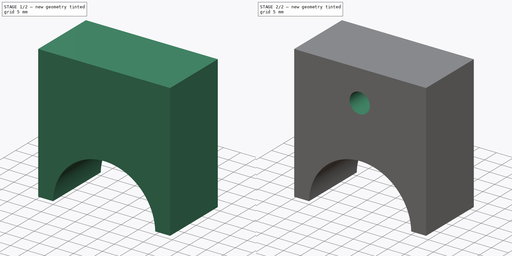
[diagram: build sequence overview — one tinted view per stage of 2, left to right]
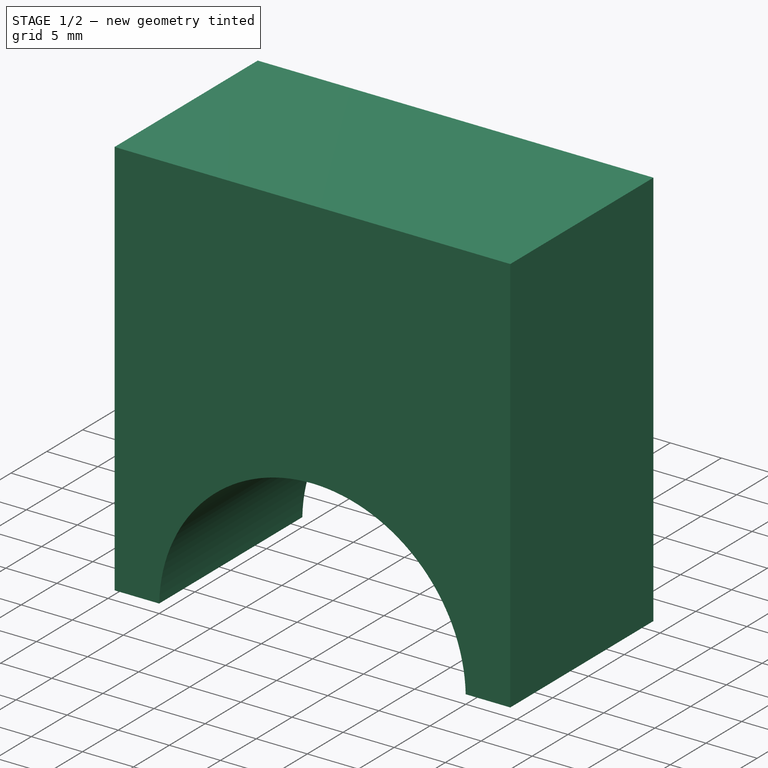
[diagram: stage 1 of 2 — iso view after this stage's code; geometry added in this stage tinted green]
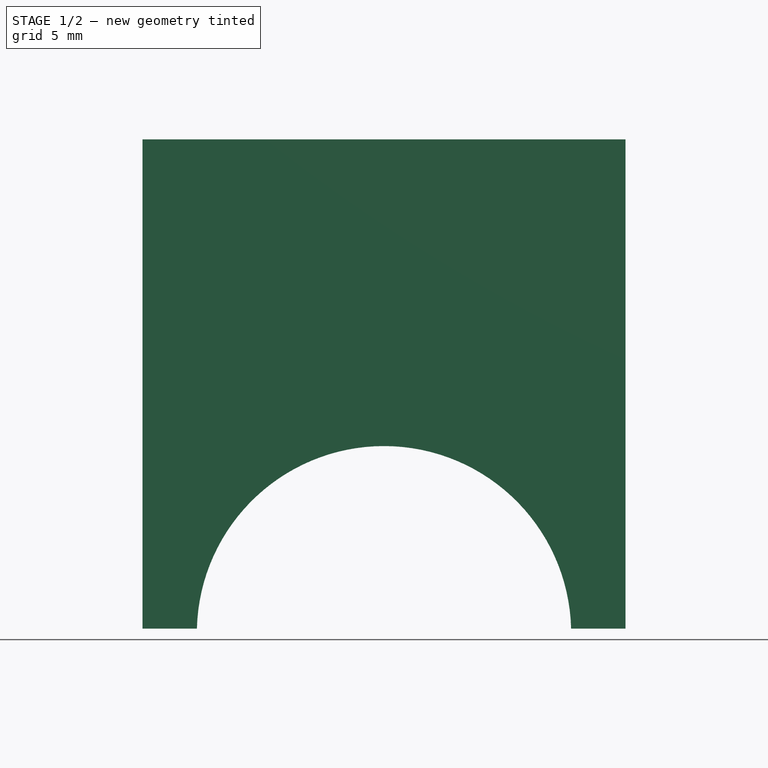
[diagram: stage 1 of 2 — front view after this stage's code; geometry added in this stage tinted green]
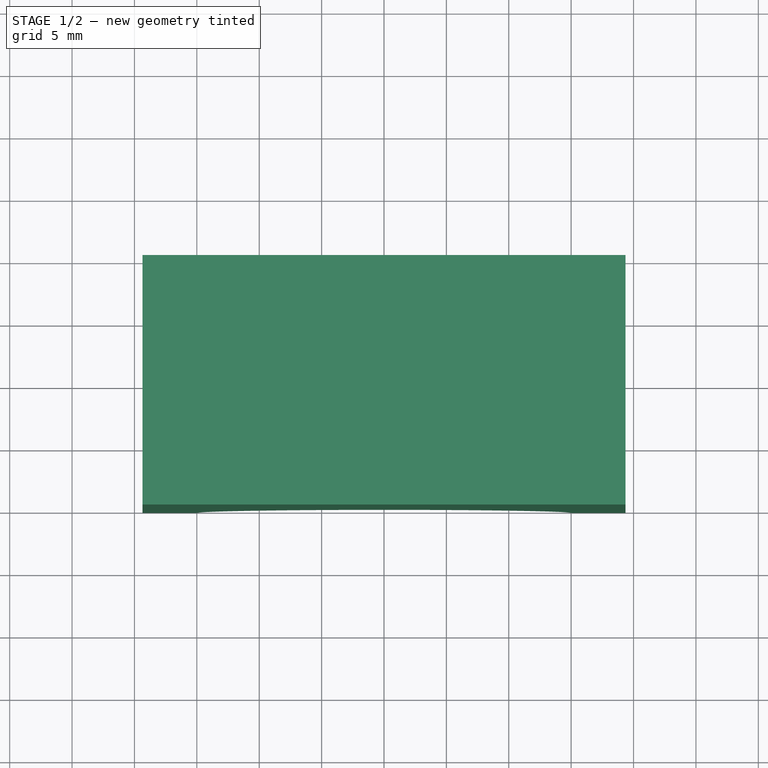
[diagram: stage 1 of 2 — top view after this stage's code; geometry added in this stage tinted green]
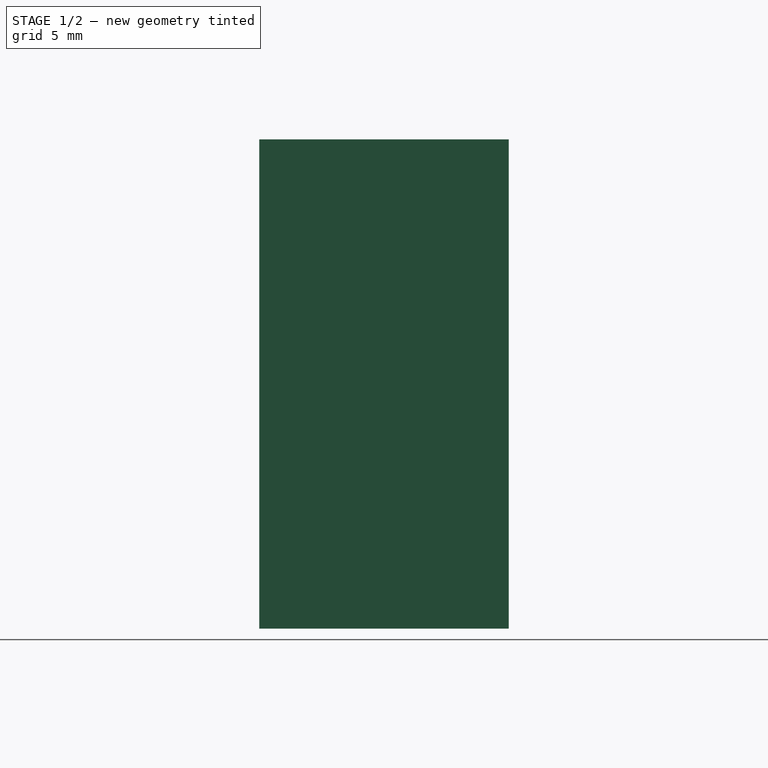
[diagram: stage 1 of 2 — right view after this stage's code; geometry added in this stage tinted green]
FCSTD DOCUMENT  (FreeCAD 0.16R6705 (Git))
Label: boccola
License: All rights reserved
LicenseURL: http://it.wikipedia.org/wiki/<copyright redacted>
objects: Sketcher::SketchObject×2, PartDesign::Pad×1, PartDesign::Pocket×1
note: 6 computed .brp shape members not serialized (recipe doc carries the construction recipe); baked Part::Feature solids carry a one-line shape summary decoded from their .brp

FEATURE [Sketcher::SketchObject] Sketch
  Placement = pos=(0,0,0) rot=(-1,0,0;4.71239rad)
  sketch-geometry (6):
    g0: ArcOfCircle CenterX=0 CenterY=-0.369393 CenterZ=0 NormalX=0 NormalY=0 NormalZ=1 Radius=15 StartAngle=0.0246288 EndAngle=3.11696
    g1: LineSegment StartX=-14.9955 StartY=1e-06 StartZ=0 EndX=-19.3579 EndY=1e-06 EndZ=0
    g2: LineSegment StartX=-19.3579 StartY=1e-06 StartZ=0 EndX=-19.3579 EndY=39.2091 EndZ=0
    g3: LineSegment StartX=-19.3579 StartY=39.2091 StartZ=0 EndX=19.3579 EndY=39.2091 EndZ=0
    g4: LineSegment StartX=19.3579 StartY=39.2091 StartZ=0 EndX=19.3579 EndY=1e-06 EndZ=0
    g5: LineSegment StartX=14.9955 StartY=1e-06 StartZ=0 EndX=19.3579 EndY=1e-06 EndZ=0
  constraints (14):
    c: Coincident(g1,g2)
    c: Coincident(g1,g0)
    c: Coincident(g2,g3)
    c: Coincident(g3,g4)
    c: Coincident(g5,g4)
    c: Coincident(g0,g5)
    c: Horizontal(g1)
    c: Horizontal(g5)
    c: Symmetric(g0,g0,g-2)
    c: Vertical(g4)
    c: Vertical(g2)
    c: Equal(g1,g5)
    c: Horizontal(g3)
    c: Radius(g0) = 15
FEATURE [PartDesign::Pad] Pad
  Length = 20
  Length2 = 100
  Placement = pos=(0,0,0) rot=(-1,0,0;4.71239rad)
  Sketch = -> Sketch
  Type = 0
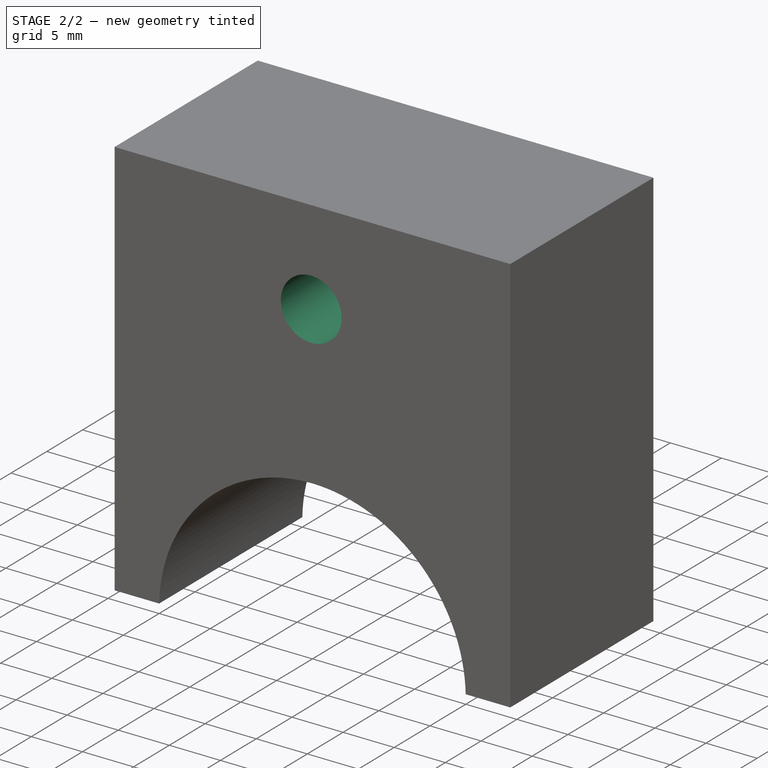
[diagram: stage 2 of 2 — iso view after this stage's code; geometry added in this stage tinted green]
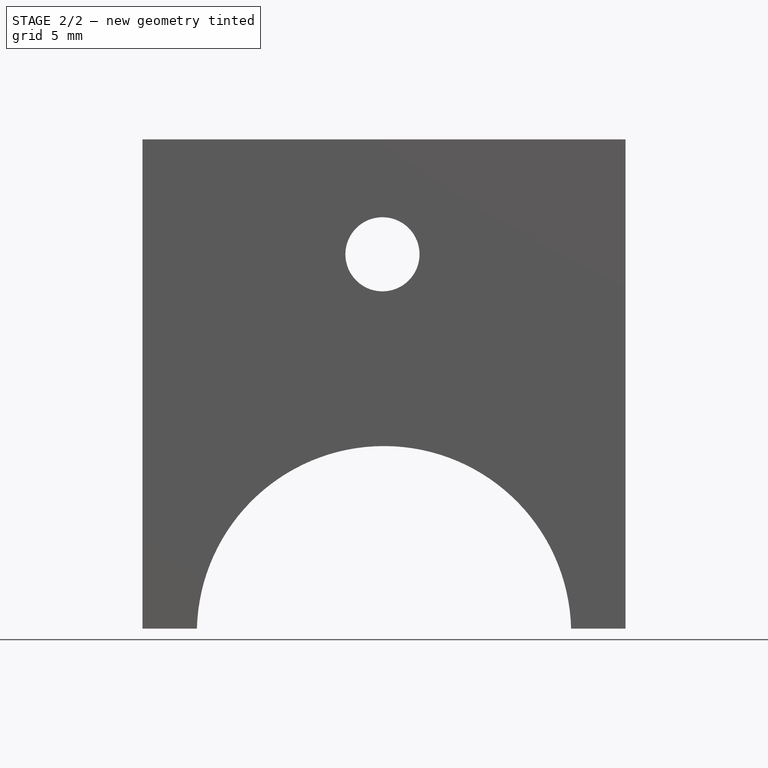
[diagram: stage 2 of 2 — front view after this stage's code; geometry added in this stage tinted green]
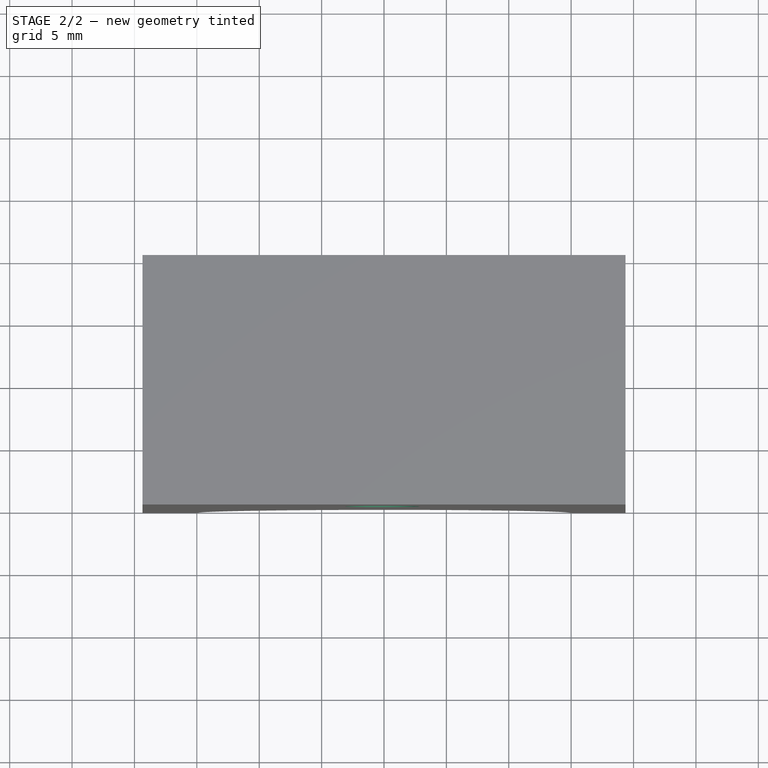
[diagram: stage 2 of 2 — top view after this stage's code; geometry added in this stage tinted green]
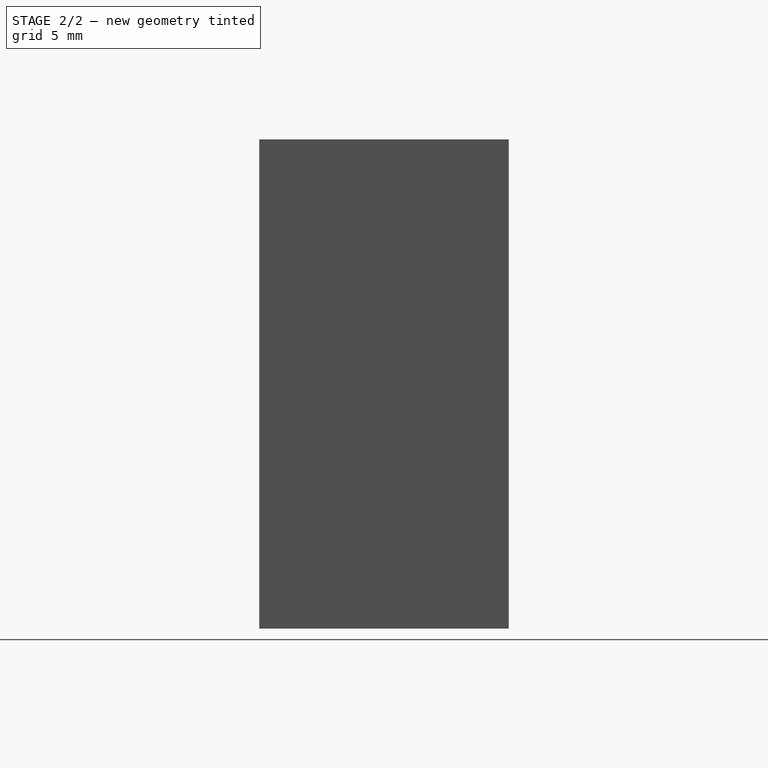
[diagram: stage 2 of 2 — right view after this stage's code; geometry added in this stage tinted green]
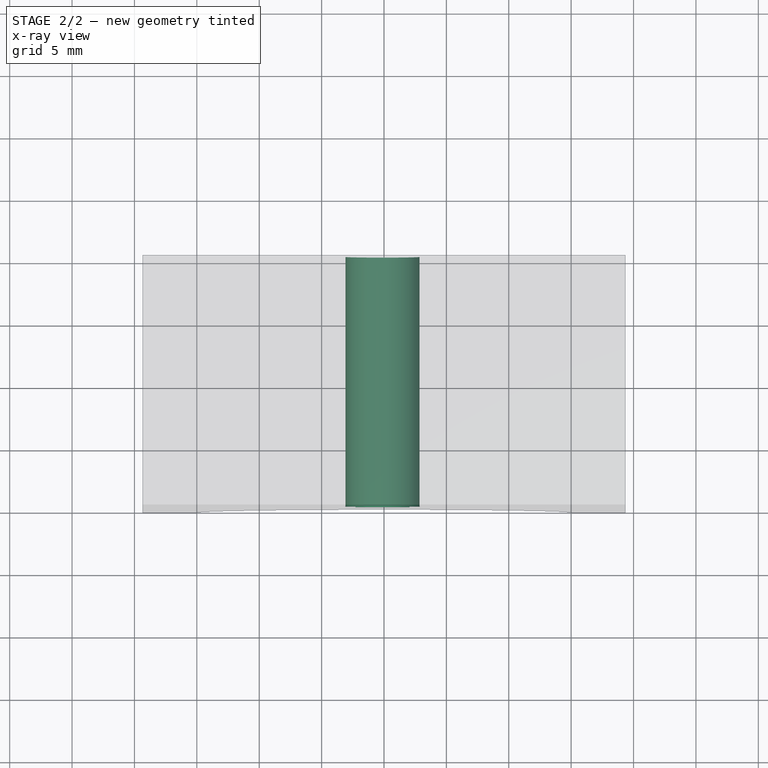
[diagram: stage 2 of 2 — x-ray composite at the top view; earlier geometry ghosted, this stage's added geometry solid]
FEATURE [Sketcher::SketchObject] Sketch001
  Placement = pos=(0,-20,0) rot=(1,0,0;1.5708rad)
  Support = -> Pad [Face8]
  sketch-geometry (1):
    g0: Circle CenterX=-0.123295 CenterY=30 CenterZ=0 NormalX=0 NormalY=0 NormalZ=1 Radius=2.96943
  constraints (1):
    c: DistanceY(g-1,g0) = 30
FEATURE [PartDesign::Pocket] Pocket
  Length = 5
  Placement = pos=(0,0,0) rot=(-1,0,0;4.71239rad)
  Sketch = -> Sketch001
  Type = 1
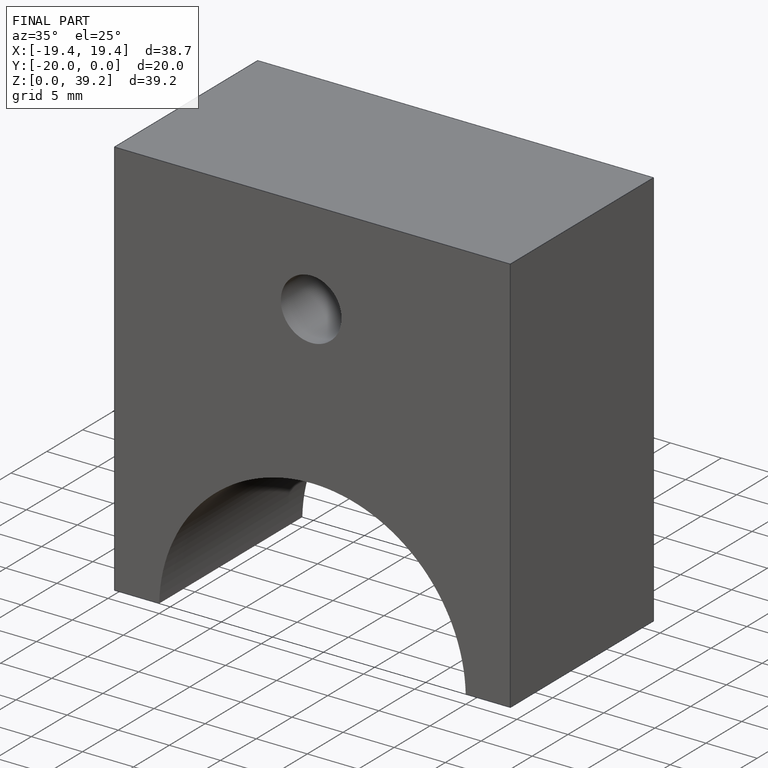
[diagram: finished part — iso view with bounding-box wireframe]
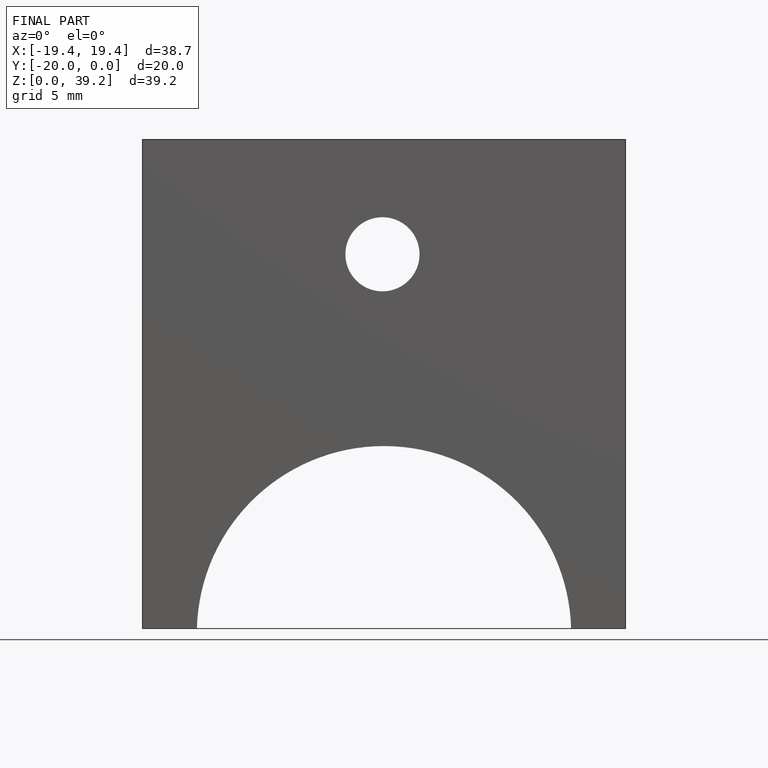
[diagram: finished part — front view with bounding-box wireframe]
